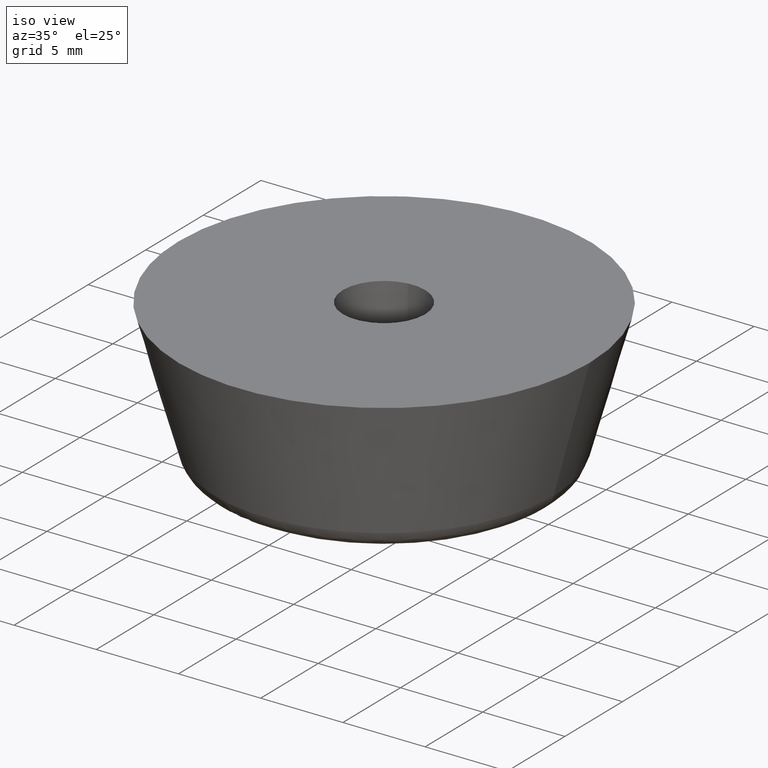
[diagram: clean part render]
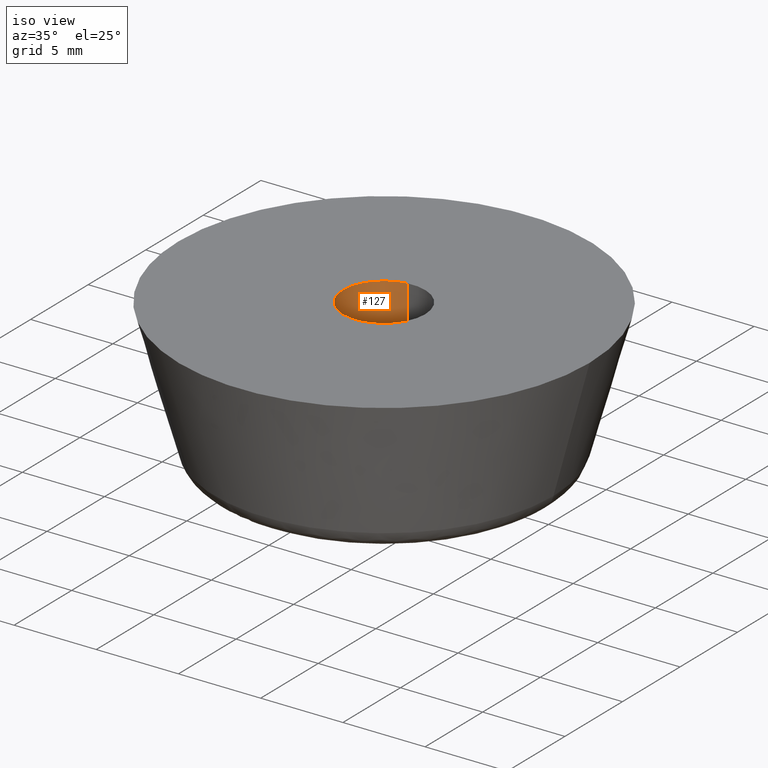
[diagram: same view with one face highlighted and labeled with its STEP entity id]
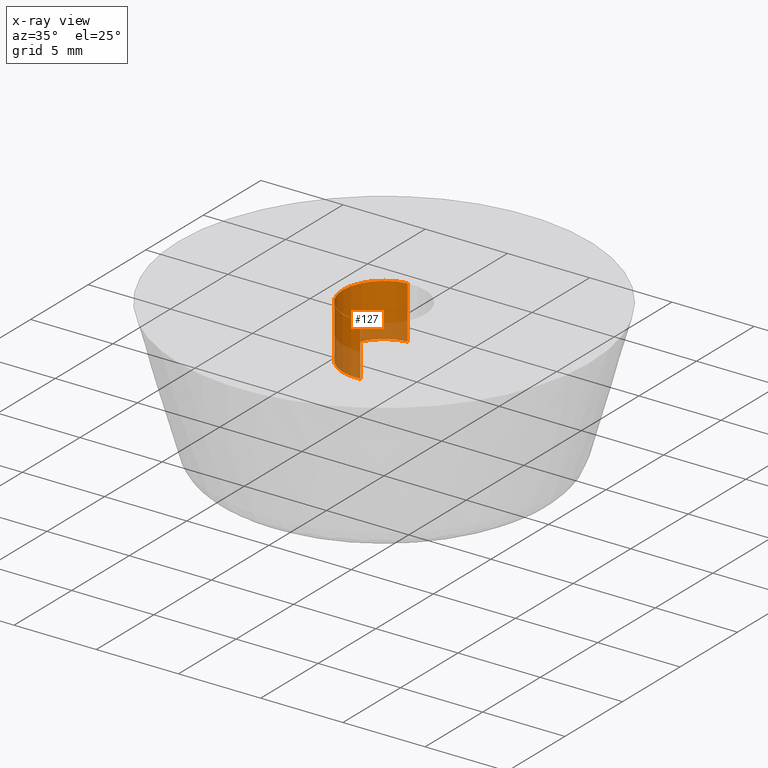
[diagram: x-ray of the same camera — body ghosted, the highlighted face saturated]
A machine part, iso view. The second image highlights one B-rep face of the part: STEP entity #127.
The next image is the same camera in x-ray: the body ghosted, the highlighted face saturated — about 31% of this face is hidden behind the body in this view.
In plain terms, the highlighted cylindrical surface (partial cylindrical patch) has radius 2.5 mm, axis along (-0, -0, -1).
Its self-contained STEP definition (entity closure, byte-faithful):
#127=ADVANCED_FACE('',(#289),#288,.F.);
#288=CYLINDRICAL_SURFACE('',#476,2.50000000000E+000);
#289=FACE_OUTER_BOUND('',#477,.T.);
#473=CARTESIAN_POINT('',(2.68844919542E-016,5.81834090228E-018,7.40000009537E+000));
#474=DIRECTION('',(-5.16645848750E-015,-6.14111906550E-016,-1.00000000000E+000));
#475=DIRECTION('',(-1.18034234657E-001,9.93009526364E-001,1.51569762177E-027));
#476=AXIS2_PLACEMENT_3D('',#473,#474,#475);
#477=EDGE_LOOP('',(#562,#563,#564,#565));
#562=ORIENTED_EDGE('',*,*,#610,.T.);
#563=ORIENTED_EDGE('',*,*,#618,.F.);
#564=ORIENTED_EDGE('',*,*,#606,.F.);
#565=ORIENTED_EDGE('',*,*,#619,.T.);
#606=EDGE_CURVE('',#788,#789,#790,.T.);
#610=EDGE_CURVE('',#816,#817,#818,.T.);
#618=EDGE_CURVE('',#789,#817,#868,.T.);
#619=EDGE_CURVE('',#788,#816,#874,.T.);
#788=VERTEX_POINT('',#1012);
#789=VERTEX_POINT('',#1013);
#790=CIRCLE('',#1017,2.49999982629E+000);
#816=VERTEX_POINT('',#1032);
#817=VERTEX_POINT('',#1033);
#818=CIRCLE('',#1037,2.50000000000E+000);
#868=(BOUNDED_CURVE() B_SPLINE_CURVE(1,(#1063,#1064),.UNSPECIFIED.,.F.,.F.) B_SPLINE_CURVE_WITH_KNOTS((2,2),(8.33333233997E-002,9.16666663280E-001),.UNSPECIFIED.) CURVE() GEOMETRIC_REPRESENTATION_ITEM() RATIONAL_B_SPLINE_CURVE((1.00000000000E+000,1.00000000000E+000)) REPRESENTATION_ITEM('') );
#874=(BOUNDED_CURVE() B_SPLINE_CURVE(1,(#1065,#1066),.UNSPECIFIED.,.F.,.F.) B_SPLINE_CURVE_WITH_KNOTS((2,2),(8.33333333333E-002,9.16666666667E-001),.UNSPECIFIED.) CURVE() GEOMETRIC_REPRESENTATION_ITEM() RATIONAL_B_SPLINE_CURVE((7.50000000000E-001,7.50000000000E-001)) REPRESENTATION_ITEM('') );
#1012=CARTESIAN_POINT('',(2.95084679854E-001,-2.48252393282E+000,9.00000000000E+000));
#1013=CARTESIAN_POINT('',(-2.95085544566E-001,2.48252346192E+000,9.00000000000E+000));
#1014=CARTESIAN_POINT('',(1.73709579832E-007,-1.63409656251E-007,9.00000000000E+000));
#1015=DIRECTION('',(-1.64203680681E-023,-2.51214793389E-016,-1.00000000000E+000));
#1016=DIRECTION('',(1.18033810659E-001,-9.93009576762E-001,2.49458693721E-016));
#1017=AXIS2_PLACEMENT_3D('',#1014,#1015,#1016);
#1032=CARTESIAN_POINT('',(2.95514653006E-001,-2.48247277726E+000,5.80000000000E+000));
#1033=CARTESIAN_POINT('',(-2.95514653006E-001,2.48247277726E+000,5.80000000000E+000));
#1034=CARTESIAN_POINT('',(1.33226762955E-015,1.33226762955E-015,5.80000000000E+000));
#1035=DIRECTION('',(9.43749618383E-015,1.47955832953E-015,-1.00000000000E+000));
#1036=DIRECTION('',(-1.18205861202E-001,9.92989110906E-001,3.53617946174E-016));
#1037=AXIS2_PLACEMENT_3D('',#1034,#1035,#1036);
#1063=CARTESIAN_POINT('',(-2.95085586642E-001,2.48252381591E+000,9.00000003815E+000));
#1064=CARTESIAN_POINT('',(-2.95085586642E-001,2.48252381591E+000,5.80000001301E+000));
#1065=CARTESIAN_POINT('',(2.95085586642E-001,-2.48252381591E+000,9.00000000000E+000));
#1066=CARTESIAN_POINT('',(2.95085586642E-001,-2.48252381591E+000,5.80000000000E+000));